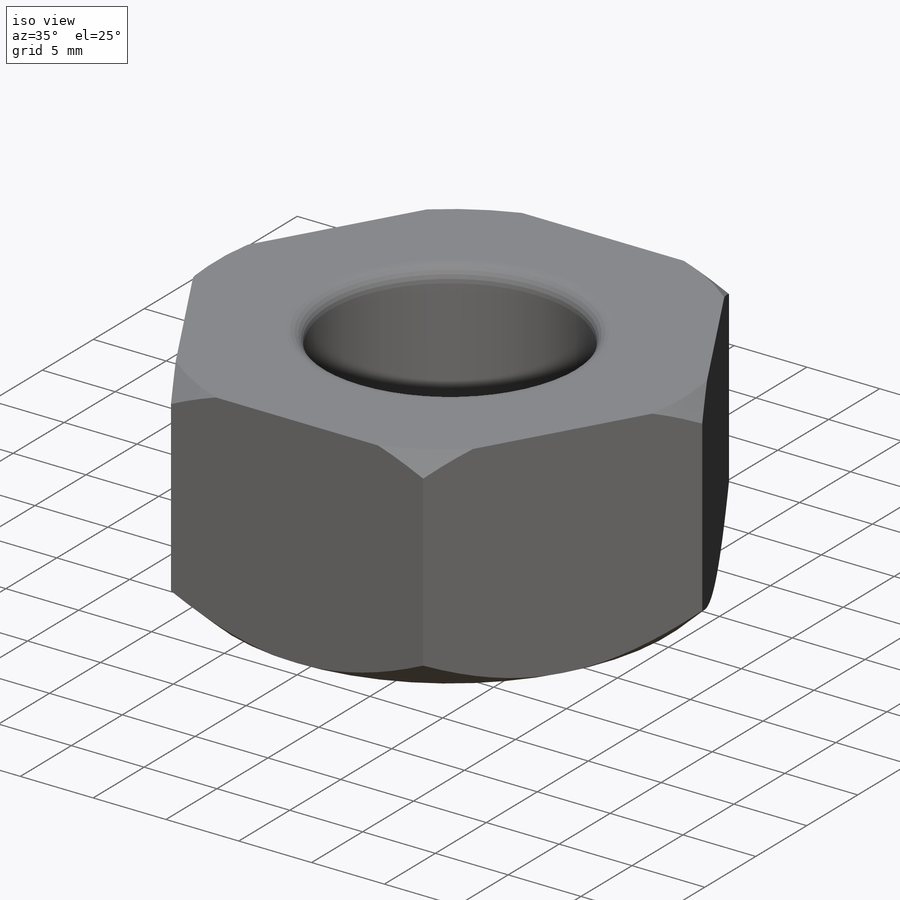
[diagram: iso view]
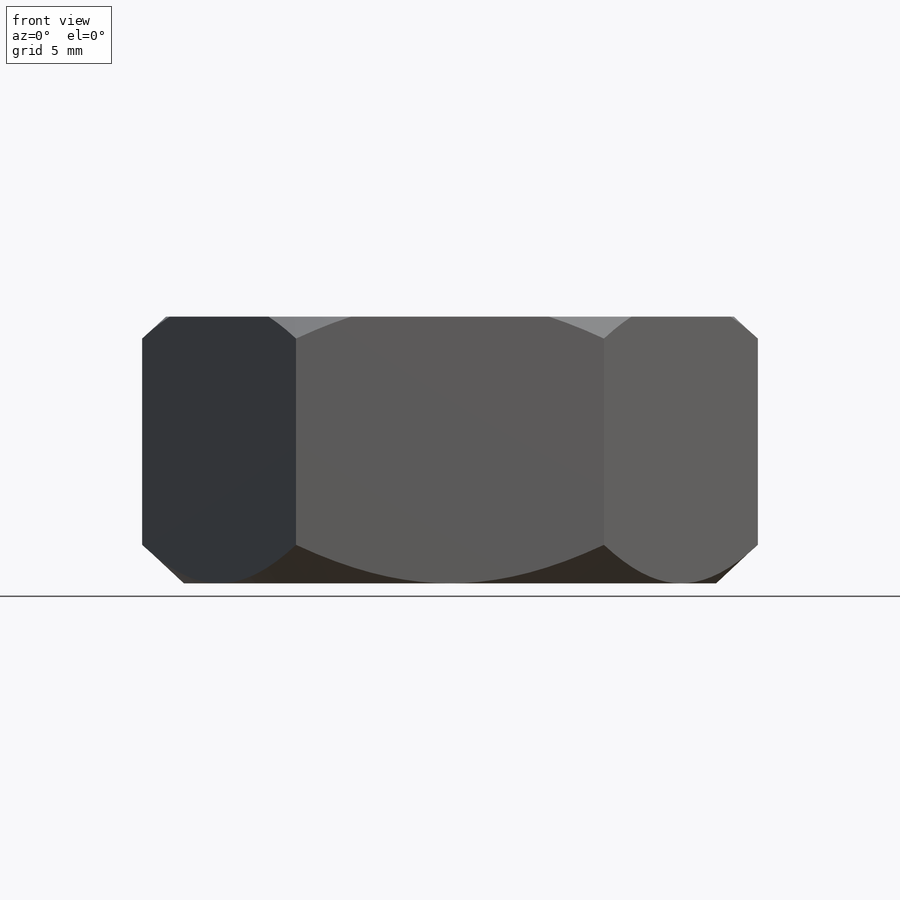
[diagram: front view]
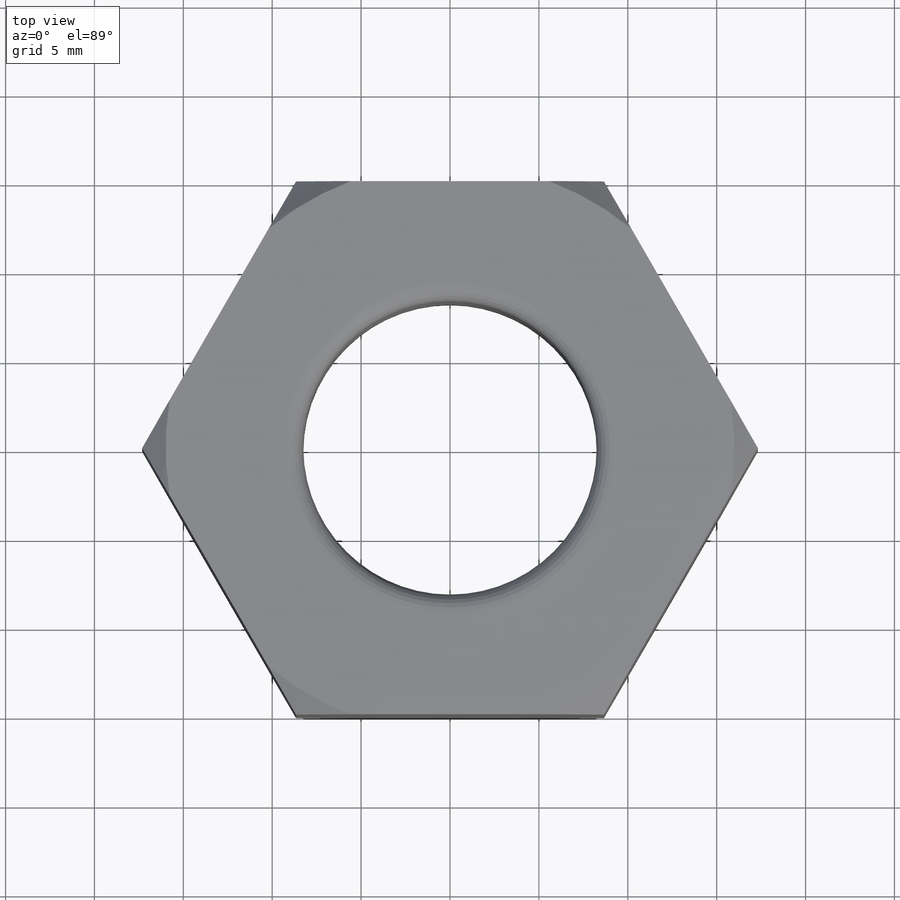
[diagram: top view]
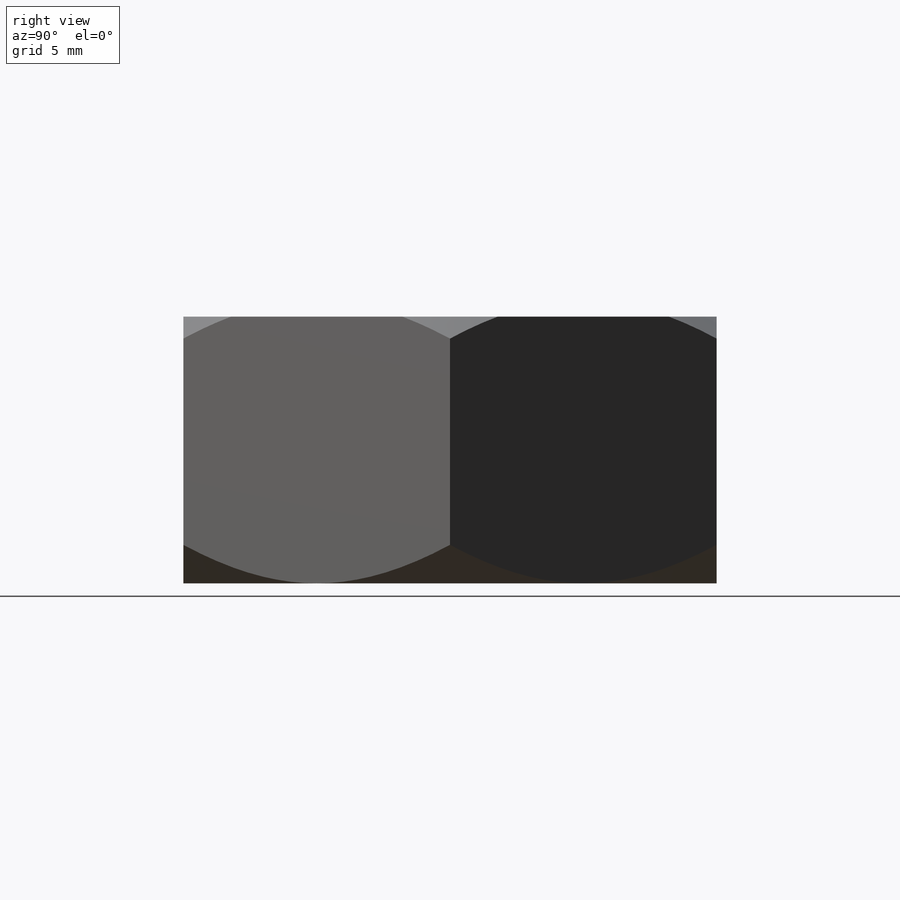
[diagram: right view]
SOLIDWORKS PART (.sldprt)
format: sldprt  version: not decoded by parser v0  size: 224,768 bytes
history: native  units: mm
features: sketch x4, plane x3, cut_extrude x3, material x1, extrude x1, fillet x1 (+10 scaffold rows collapsed)
feature tree (23):
  scaffold x10  (default folders/planes/origin — collapsed)
  material  "Material <sin especificar>"
  plane  "Alzado"
  plane  "Planta"
  plane  "Vista lateral"
  sketch  "Croquis1"  dims[D1=30.0mm]
  extrude  "Saliente-Extruir1"  Depth=15mm
  sketch  "Croquis2"
  cut_extrude  "Cortar-Extruir1"  Depth=15mm
  sketch  "Croquis3"  dims[D1=30.0mm]
  cut_extrude  "Cortar-Extruir2"  Depth=15mm
  sketch  "Croquis4"  dims[D1=16.5mm]
  cut_extrude  "Cortar-Extruir3"  Depth=15mm
  fillet  "Redondeo1"  Radius=1mm
decode coverage: 8 of 9 modeling features carry decoded parameters
note: suppression state not decoded; provenance and decode notes live in map.json
